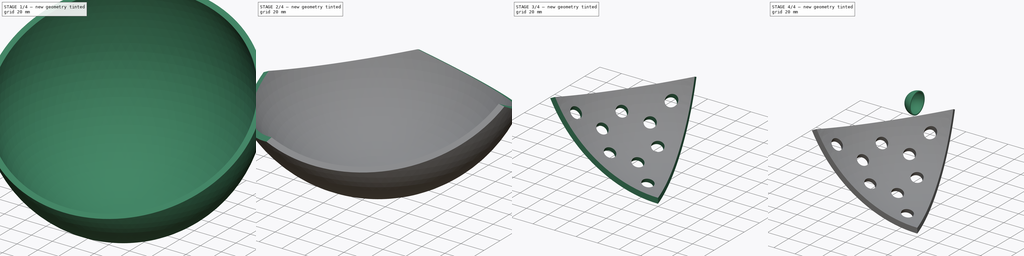
[diagram: build sequence overview — one tinted view per stage of 4, left to right]
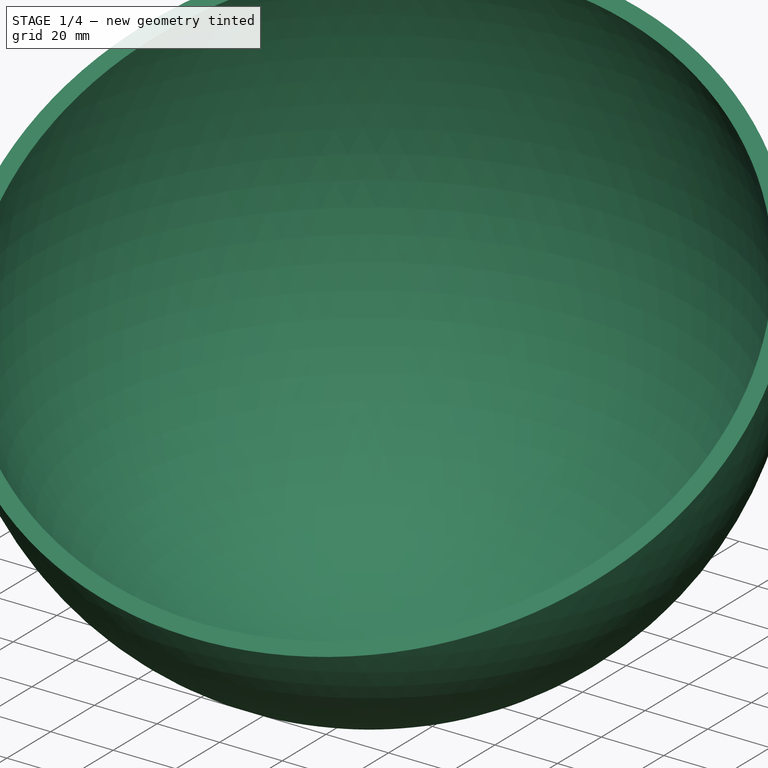
[diagram: stage 1 of 4 — iso view after this stage's code; geometry added in this stage tinted green]
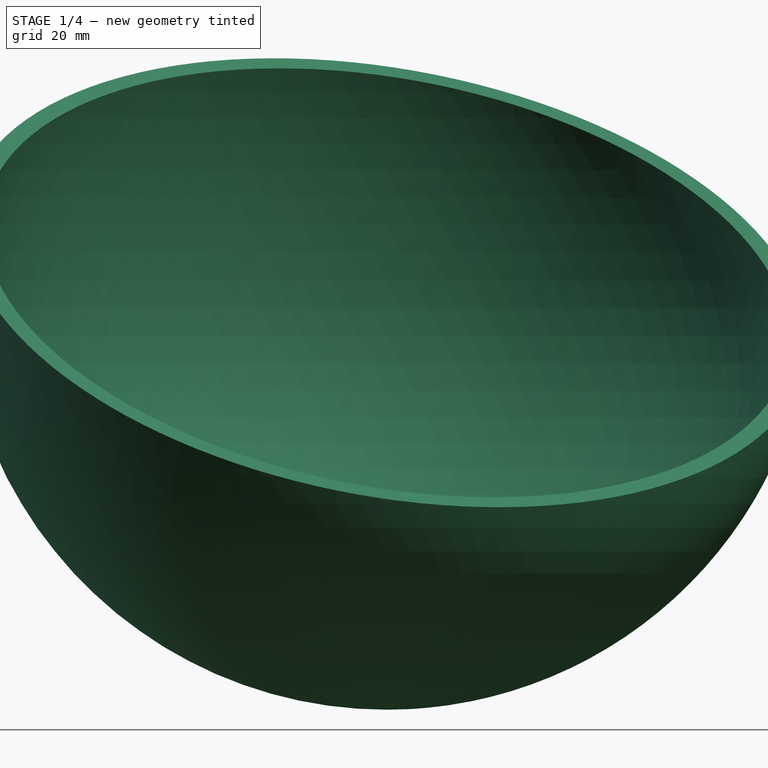
[diagram: stage 1 of 4 — front view after this stage's code; geometry added in this stage tinted green]
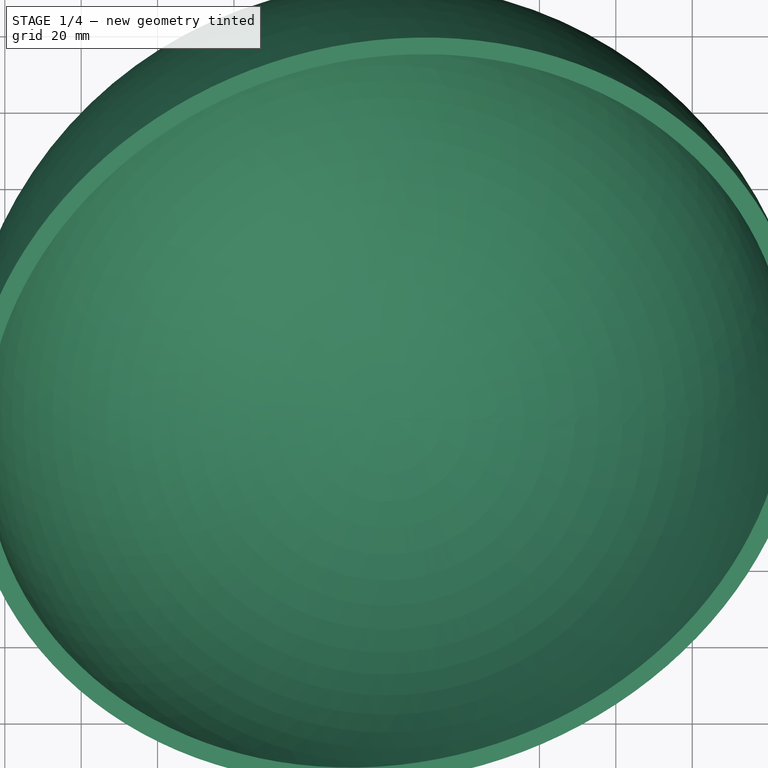
[diagram: stage 1 of 4 — top view after this stage's code; geometry added in this stage tinted green]
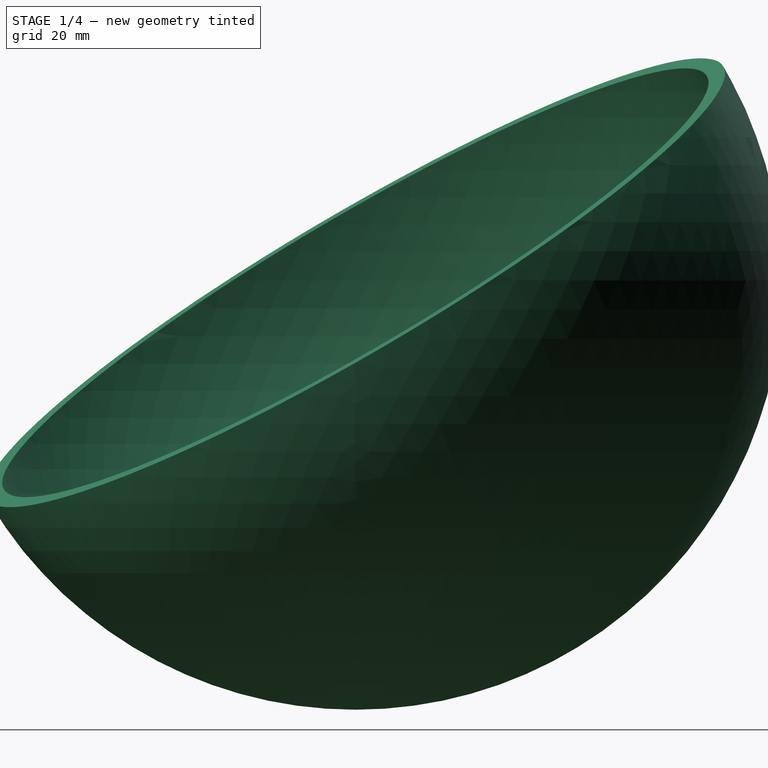
[diagram: stage 1 of 4 — right view after this stage's code; geometry added in this stage tinted green]
FCSTD DOCUMENT  (FreeCAD 0.19R24267 +99 (Git))
Label: test
License: All rights reserved
LicenseURL: http://en.wikipedia.org/wiki/All_rights_reserved
objects: PartDesign::SubtractiveBox×8, PartDesign::Body×3, PartDesign::Plane×3, PartDesign::AdditiveSphere×2, PartDesign::SubtractiveSphere×2, Part::Part2DObjectPython×2, Sketcher::SketchObject×2, Part::Vertex×1, App::Part×1, Spreadsheet::Sheet×1, PartDesign::Pocket×1
note: 37 computed .brp shape members not serialized (recipe doc carries the construction recipe); baked Part::Feature solids carry a one-line shape summary decoded from their .brp

FEATURE [PartDesign::Body] Body
  Group = -> [Sphere,Sphere001,Box]
  Origin = -> Origin
  Tip = -> Box
FEATURE [Part::Part2DObjectPython] Polygon  label="pentagon1"  # Draft 2D object (typed FeaturePython)
  Area = 0
  ChamferSize = 0
  DrawMode = 0
  FacesNumber = 5
  FilletRadius = 0
  MakeFace = false
  Placement = pos=(0,0,50) rot=(0,0,1;0rad)
  Radius = 100
  expr: .Placement.Base.z = <<Spreadsheet>>.hex_radius / 2
  expr: Radius = <<Spreadsheet>>.hex_radius
FEATURE [Part::Part2DObjectPython] Polygon001  label="pentagon0"  # Draft 2D object (typed FeaturePython)
  Area = 0
  ChamferSize = 0
  DrawMode = 0
  FacesNumber = 5
  FilletRadius = 0
  MakeFace = false
  Placement = pos=(0,0,-50) rot=(0,0,1;0.628319rad)
  Radius = 100
  expr: .Placement.Base.z = -<<Spreadsheet>>.hex_radius / 2
  expr: Radius = <<Spreadsheet>>.hex_radius
FEATURE [Part::Vertex] Vertex  label="center"
  AttacherType = Attacher::AttachEngine3D
  X = 0
  Y = 0
  Z = 0
FEATURE [PartDesign::Body] Body001
  Origin = -> Origin002
FEATURE [App::Part] Part
  Group = -> [Polygon001,Polygon,Vertex,Body001]
  Origin = -> Origin001
FEATURE [Spreadsheet::Sheet] Spreadsheet
  cells = A4=hex_radius; C4(hex_radius)==100mm; A5=sphere_radius; C5(sphere_radius)==hex_radius / 2 * sqrt(5)
FEATURE [PartDesign::Plane] DatumPlane
  Length = 169.428
  MapMode = 13
  Placement = pos=(-16.6667,51.2947,33.3333) rot=(0.865183,0.137031,0.482371;0.63451rad)
  ResizeMode = 0
  Support = -> [Vertex,Polygon]
  Width = 211.302
FEATURE [PartDesign::AdditiveSphere] Sphere002
  Angle1 = -90
  Angle2 = 90
  Angle3 = 360
  AttacherType = Attacher::AttachEngine3D
  Radius = 111.803
  expr: Radius = <<Spreadsheet>>.sphere_radius
FEATURE [PartDesign::SubtractiveSphere] Sphere003
  Angle1 = -90
  Angle2 = 90
  Angle3 = 360
  AttacherType = Attacher::AttachEngine3D
  BaseFeature = -> Sphere002
  Radius = 106.803
  expr: Radius = <<Spreadsheet>>.sphere_radius - 5mm
FEATURE [PartDesign::SubtractiveBox] Box001
  AttacherType = Attacher::AttachEngine3D
  AttachmentOffset = pos=(-200,-200,0) rot=(0,0,1;0rad)
  BaseFeature = -> Sphere003
  Height = 400
  Length = 400
  MapMode = 5
  Placement = pos=(-154.305,-172.312,-71.8129) rot=(0.865183,0.137031,0.482371;0.63451rad)
  Support = -> [DatumPlane]
  Width = 400
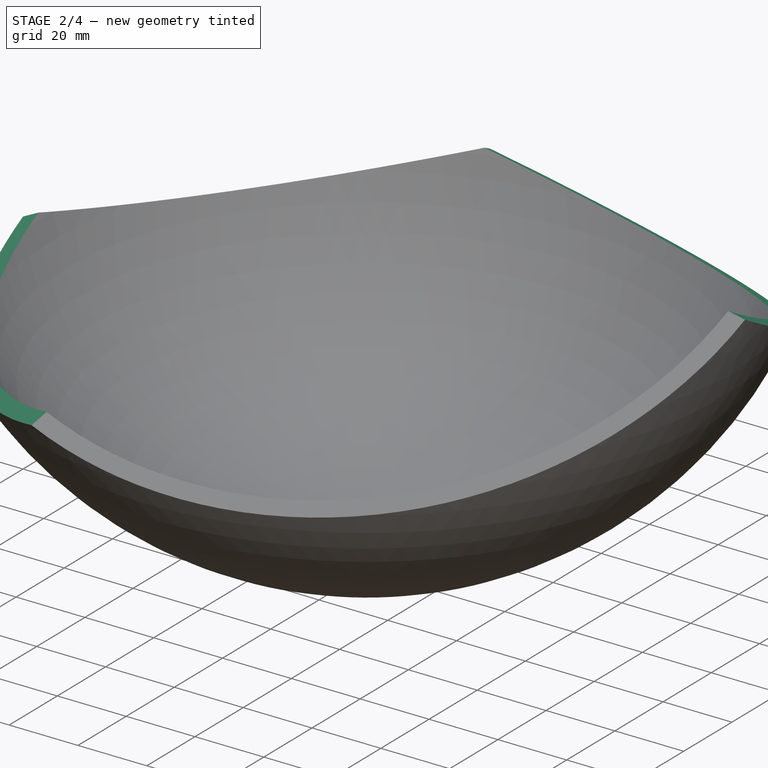
[diagram: stage 2 of 4 — iso view after this stage's code; geometry added in this stage tinted green]
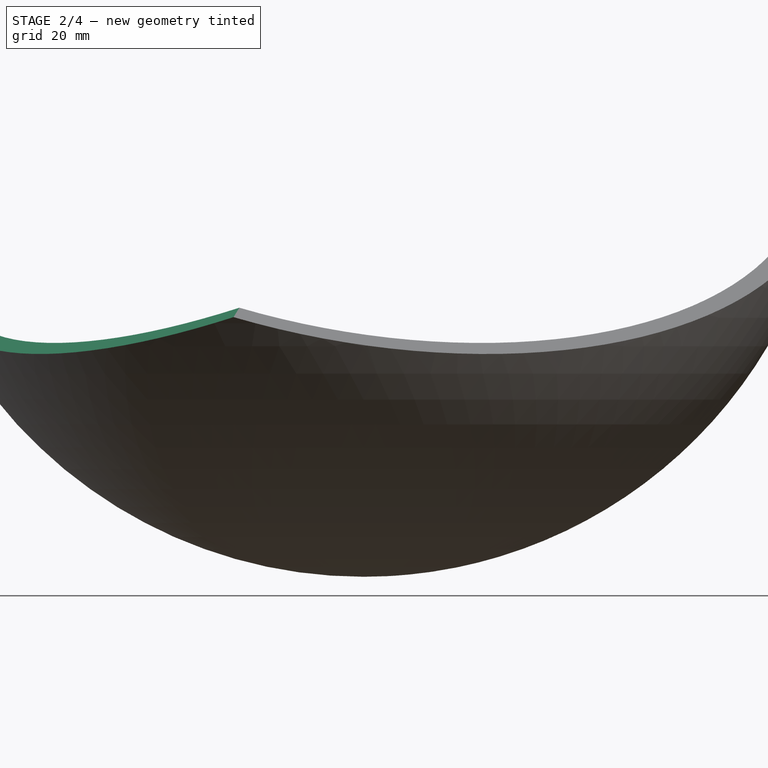
[diagram: stage 2 of 4 — front view after this stage's code; geometry added in this stage tinted green]
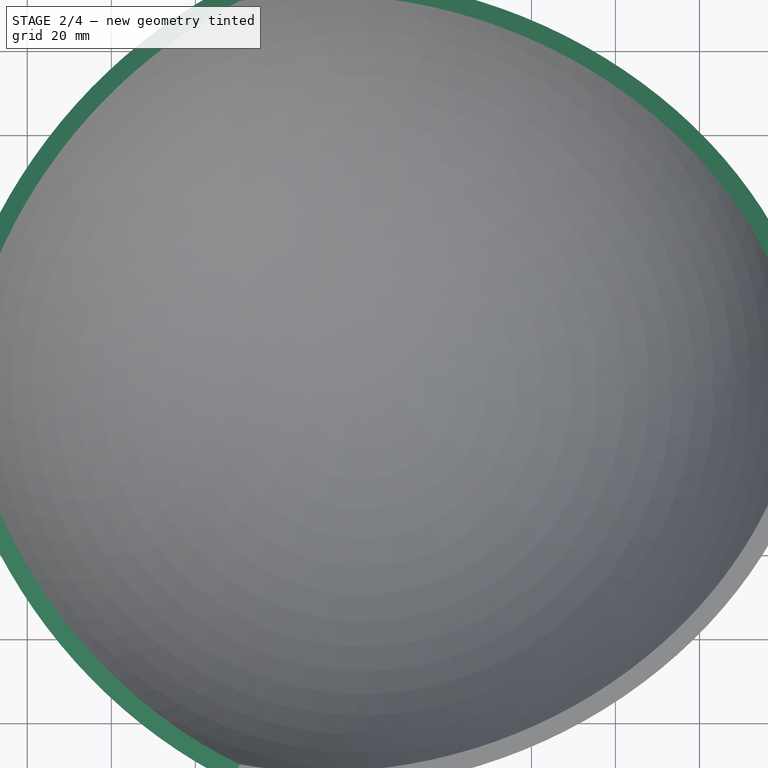
[diagram: stage 2 of 4 — top view after this stage's code; geometry added in this stage tinted green]
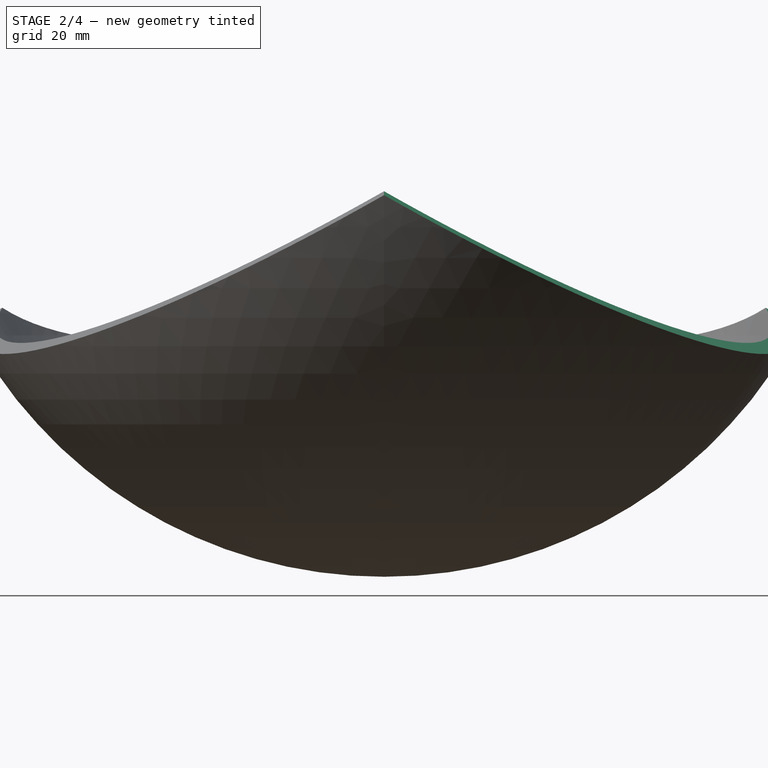
[diagram: stage 2 of 4 — right view after this stage's code; geometry added in this stage tinted green]
FEATURE [PartDesign::SubtractiveBox] Box002
  AttacherType = Attacher::AttachEngine3D
  AttachmentOffset = pos=(-200,-200,0) rot=(0,0,1;0rad)
  BaseFeature = -> Box001
  Height = 400
  Length = 400
  MapMode = 13
  Placement = pos=(-298.829,30.1015,-138.48) rot=(0.472633,-0.240819,-0.847717;1.08239rad)
  Support = -> [Vertex,Polygon001]
  Width = 400
FEATURE [PartDesign::SubtractiveBox] Box003
  AttacherType = Attacher::AttachEngine3D
  AttachmentOffset = pos=(-200,-200,0) rot=(0,0,1;0rad)
  BaseFeature = -> Box002
  Height = 400
  Length = 400
  MapMode = 13
  Placement = pos=(-63.715,293.505,-138.48) rot=(-0.137906,0.270656,0.952747;4.04547rad)
  Support = -> [Vertex,Polygon001]
  Width = 400
FEATURE [PartDesign::SubtractiveBox] Box004
  AttacherType = Attacher::AttachEngine3D
  AttachmentOffset = pos=(-200,-200,0) rot=(0,0,1;0rad)
  BaseFeature = -> Box003
  Height = 400
  Length = 400
  MapMode = 13
  Placement = pos=(259.451,151.295,-138.48) rot=(0.043241,0.273011,0.961039;2.83948rad)
  Support = -> [Vertex,Polygon001]
  Width = 400
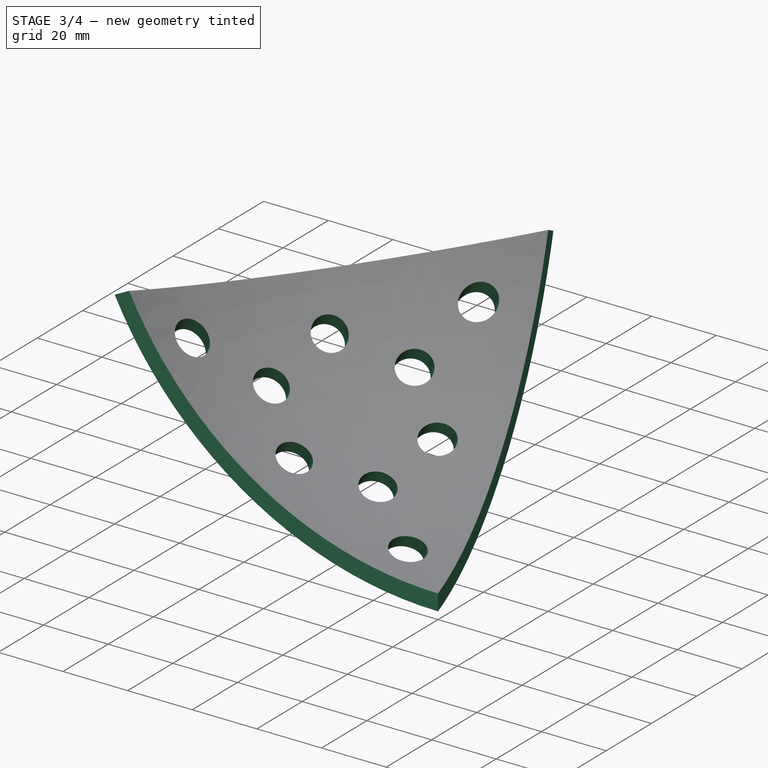
[diagram: stage 3 of 4 — iso view after this stage's code; geometry added in this stage tinted green]
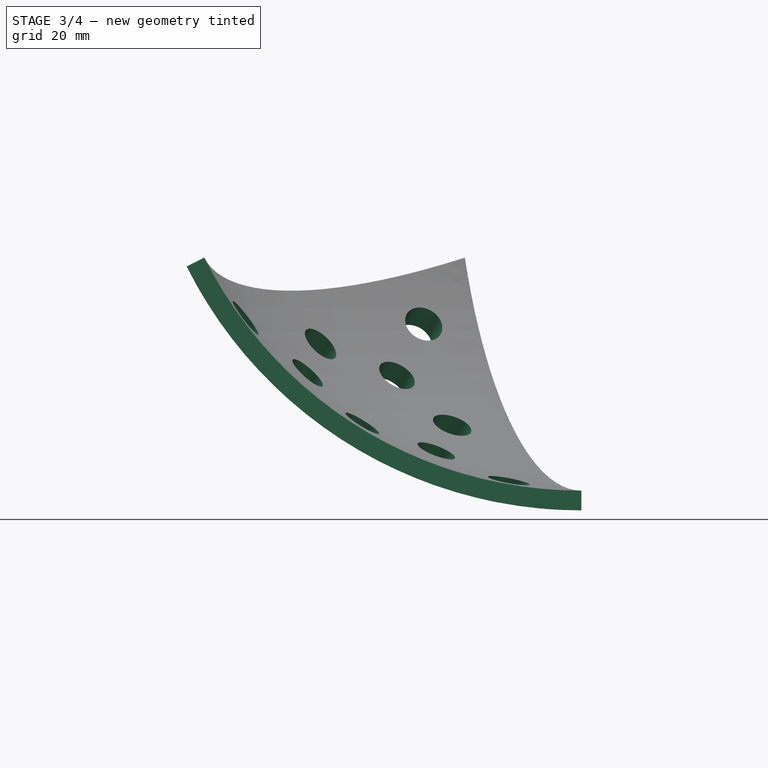
[diagram: stage 3 of 4 — front view after this stage's code; geometry added in this stage tinted green]
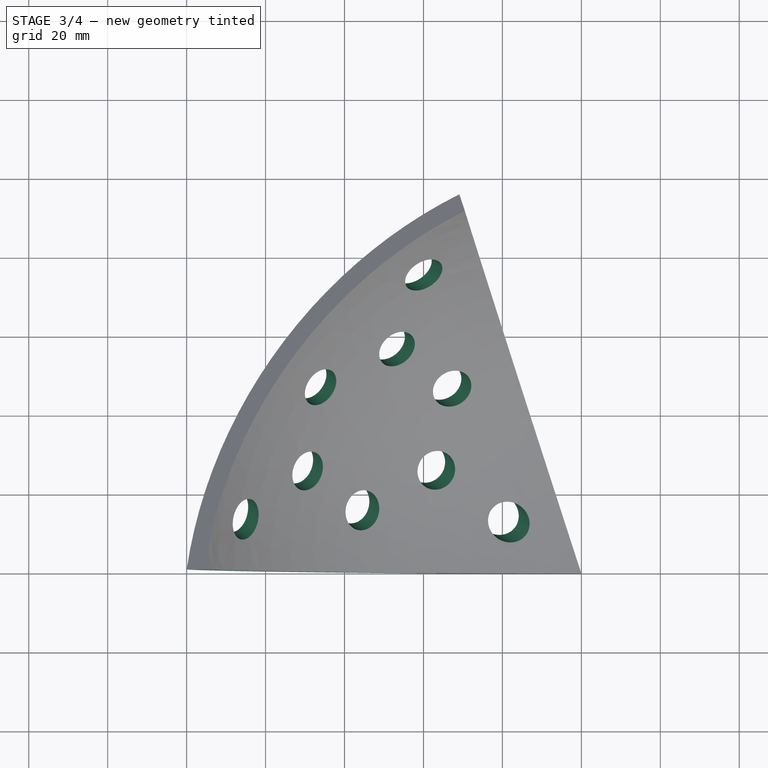
[diagram: stage 3 of 4 — top view after this stage's code; geometry added in this stage tinted green]
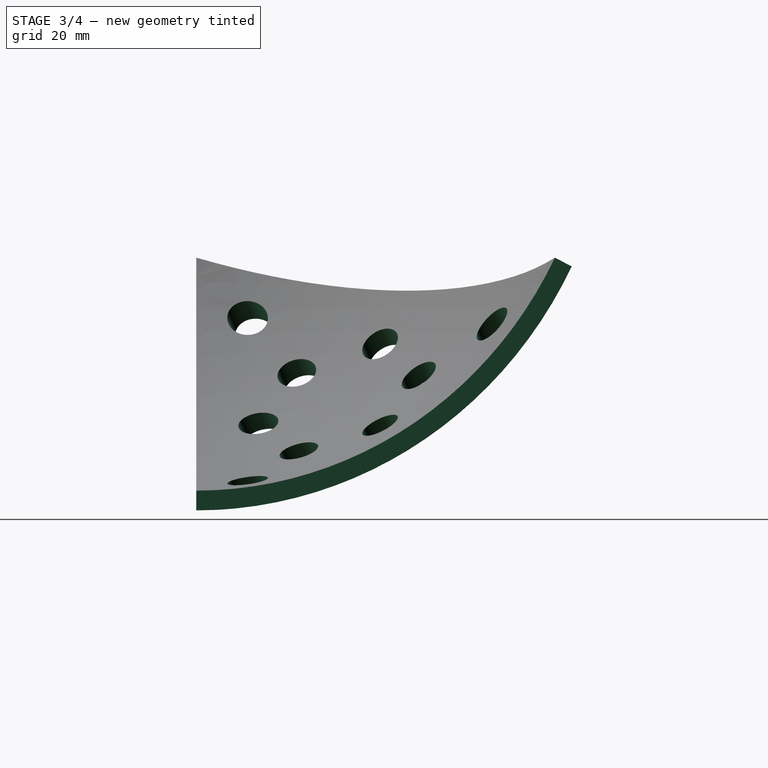
[diagram: stage 3 of 4 — right view after this stage's code; geometry added in this stage tinted green]
FEATURE [PartDesign::SubtractiveBox] Box005
  AttacherType = Attacher::AttachEngine3D
  AttachmentOffset = pos=(-200,-200,0) rot=(0,0,1;0rad)
  BaseFeature = -> Box004
  Height = 400
  Length = 400
  MapMode = 13
  Placement = pos=(224.065,-200,-138.48) rot=(0.263602,0.263602,0.927916;1.64554rad)
  Support = -> [Vertex,Polygon001]
  Width = 400
FEATURE [PartDesign::Plane] DatumPlane001
  Length = 133.767
  MapMode = 13
  Placement = pos=(-33.3333,-1.705e-13,-53.9345) rot=(1,0,0;1.5708rad)
  ResizeMode = 0
  Support = -> [Box005,Vertex]
  Width = 146.342
FEATURE [PartDesign::SubtractiveBox] Box006
  AttacherType = Attacher::AttachEngine3D
  AttachmentOffset = pos=(-200,-200,0) rot=(0,0,1;0rad)
  BaseFeature = -> Box005
  Height = 400
  Length = 400
  MapMode = 5
  Placement = pos=(-233.333,-1.0554e-12,-253.934) rot=(1,0,0;1.5708rad)
  Support = -> [DatumPlane001]
  Width = 400
FEATURE [PartDesign::SubtractiveBox] Box007
  AttacherType = Attacher::AttachEngine3D
  AttachmentOffset = pos=(-200,-200,0) rot=(0,0,1;0rad)
  BaseFeature = -> Box006
  Height = 400
  Length = 400
  MapMode = 13
  Placement = pos=(51.5028,-158.509,-253.934) rot=(0.456966,0.62896,0.62896;2.28433rad)
  Support = -> [Vertex,Box006,Polygon001]
  Width = 400
FEATURE [PartDesign::Plane] DatumPlane002
  Length = 185.37
  MapMode = 13
  Placement = pos=(-41.6825,30.2841,-67.4438) rot=(-0.434677,0.853102,0.288571;3.43357rad)
  ResizeMode = 0
  Support = -> [Box007]
  Width = 229.755
FEATURE [Sketcher::SketchObject] Sketch
  ExternalGeometry = -> [Box007]
  FullyConstrained = true
  MapMode = 5
  Placement = pos=(-41.6825,30.2841,-67.4438) rot=(-0.434677,0.853102,0.288571;3.43357rad)
  Support = -> [DatumPlane002]
  sketch-geometry (37):
    g0: Circle CenterX=-37.1412 CenterY=21.4435 CenterZ=0 NormalX=0 NormalY=0 NormalZ=1 AngleXU=0 Radius=5
    g1: Circle CenterX=-18.1484 CenterY=9.24376 CenterZ=0 NormalX=0 NormalY=0 NormalZ=1 AngleXU=0 Radius=5
    g2: Circle CenterX=1.16829 CenterY=21.9494 CenterZ=0 NormalX=0 NormalY=0 NormalZ=1 AngleXU=0 Radius=5
    g3: Circle CenterX=-18.4246 CenterY=-11.9864 CenterZ=0 NormalX=0 NormalY=0 NormalZ=1 AngleXU=0 Radius=5
    g4: LineSegment StartX=58.7785 StartY=33.9358 StartZ=0 EndX=-2.061e-13 EndY=-67.8716 EndZ=0
    g5: LineSegment StartX=-2.061e-13 StartY=-67.8716 StartZ=0 EndX=-56.1499 EndY=32.4181 EndZ=0
    g6: LineSegment StartX=-17.8404 StartY=32.924 StartZ=0 EndX=-37.4332 EndY=-1.01177 EndZ=0
    g7: LineSegment StartX=-17.8404 StartY=32.924 StartZ=0 EndX=19.5928 EndY=-33.9358 EndZ=0
    g8: LineSegment StartX=-37.4332 StartY=-1.01177 StartZ=0 EndX=39.1857 EndY=-7.82e-14 EndZ=0
    g9: LineSegment StartX=20.4691 StartY=33.4299 StartZ=0 EndX=-18.7166 EndY=-34.4417 EndZ=0
    g10: LineSegment StartX=20.4691 StartY=33.4299 StartZ=0 EndX=39.1857 EndY=-7.82e-14 EndZ=0
    g11: LineSegment StartX=-18.7166 StartY=-34.4417 StartZ=0 EndX=19.5928 EndY=-33.9358 EndZ=0
    g12: LineSegment StartX=-56.1499 StartY=32.4181 StartZ=0 EndX=-36.9951 EndY=32.6711 EndZ=0
    g13: LineSegment StartX=-36.9951 StartY=32.6711 StartZ=0 EndX=-17.8404 EndY=32.924 EndZ=0
    g14: LineSegment StartX=-17.8404 StartY=32.924 StartZ=0 EndX=1.31433 EndY=33.177 EndZ=0
    g15: LineSegment StartX=1.31433 StartY=33.177 StartZ=0 EndX=20.4691 EndY=33.4299 EndZ=0
    g16: LineSegment StartX=20.4691 StartY=33.4299 StartZ=0 EndX=39.6238 EndY=33.6829 EndZ=0
    g17: LineSegment StartX=39.6238 StartY=33.6829 StartZ=0 EndX=58.7785 EndY=33.9358 EndZ=0
    g18: GeomPoint X=39.1857 Y=-7.82e-14 Z=0
    g19: LineSegment StartX=-17.8404 StartY=32.924 StartZ=0 EndX=-18.7166 EndY=-34.4417 EndZ=0
    g20: LineSegment StartX=-37.1412 StartY=21.4435 StartZ=0 EndX=52.2476 EndY=22.6239 EndZ=0
    g21: LineSegment StartX=1.31433 StartY=33.177 StartZ=0 EndX=-2.061e-13 EndY=-67.8716 EndZ=0
    g22: LineSegment StartX=-36.9951 StartY=32.6711 StartZ=0 EndX=-46.7916 EndY=15.7032 EndZ=0
    g23: LineSegment StartX=-46.7916 StartY=15.7032 StartZ=0 EndX=-27.6368 EndY=15.9561 EndZ=0
    g24: LineSegment StartX=-56.1499 StartY=32.4181 StartZ=0 EndX=29.3893 EndY=-16.9679 EndZ=0
    g25: LineSegment StartX=-46.7916 StartY=15.7032 StartZ=0 EndX=-17.8404 EndY=32.924 EndZ=0
    g26: LineSegment StartX=-43.38 StartY=32.5868 StartZ=0 EndX=6.53095 EndY=-56.5597 EndZ=0
    g27: Circle CenterX=0.292073 CenterY=-45.4164 CenterZ=0 NormalX=0 NormalY=0 NormalZ=1 AngleXU=0 Radius=5
    g28: Circle CenterX=19.8849 CenterY=-11.4806 CenterZ=0 NormalX=0 NormalY=0 NormalZ=1 AngleXU=0 Radius=5
    g29: LineSegment StartX=-36.9951 StartY=32.6711 StartZ=0 EndX=9.79642 EndY=-50.9037 EndZ=0
    g30: LineSegment StartX=39.6238 StartY=33.6829 StartZ=0 EndX=39.1857 EndY=-7.82e-14 EndZ=0
    g31: LineSegment StartX=19.5928 StartY=-33.9358 StartZ=0 EndX=20.4691 EndY=33.4299 EndZ=0
    g32: Circle CenterX=39.4778 CenterY=22.4552 CenterZ=0 NormalX=0 NormalY=0 NormalZ=1 AngleXU=0 Radius=5
    g33: LineSegment StartX=-18.1484 StartY=9.24376 StartZ=0 EndX=20.1611 EndY=9.74965 EndZ=0
    g34: Circle CenterX=20.1611 CenterY=9.74965 CenterZ=0 NormalX=0 NormalY=0 NormalZ=1 AngleXU=0 Radius=5
    g35: LineSegment StartX=-18.7166 StartY=-34.4417 StartZ=0 EndX=39.1857 EndY=-7.82e-14 EndZ=0
    g36: Circle CenterX=0.584146 CenterY=-22.9611 CenterZ=0 NormalX=0 NormalY=0 NormalZ=1 AngleXU=0 Radius=5
  constraints (98):
    c: Radius(g0) = 5
    c: Equal(g12,g13)
    c: Equal(g13,g14)
    c: Equal(g14,g15)
    c: Equal(g15,g16)
    c: Equal(g16,g17)
    c: Parallel(g12,g13)
    c: Parallel(g13,g14)
    c: Parallel(g14,g15)
    c: Parallel(g15,g16)
    c: Parallel(g16,g17)
    c: Coincident(g12,g13)
    c: Coincident(g14,g13)
    c: Coincident(g15,g14)
    c: Coincident(g16,g15)
    c: Coincident(g16,g17)
    c: Coincident(g12,g-4)
    c: Coincident(g-5,g17)
    c: Coincident(g4,g17)
    c: Coincident(g4,g-3)
    c: Coincident(g5,g4)
    c: Coincident(g5,g12)
    c: Coincident(g6,g7)
    c: Coincident(g6,g13)
    c: Coincident(g10,g15)
    c: Coincident(g10,g9)
    c: Parallel(g6,g9)
    c: Parallel(g9,g4)
    c: PointOnObject(g18,g4)
    c: Coincident(g10,g18)
    c: Parallel(g10,g5)
    c: Parallel(g7,g5)
    c: PointOnObject(g7,g4)
    c: PointOnObject(g6,g5)
    c: PointOnObject(g9,g5)
    c: Coincident(g8,g6)
    c: Coincident(g11,g9)
    c: Coincident(g8,g10)
    c: Coincident(g11,g7)
    c: Coincident(g19,g6)
    c: Coincident(g19,g9)
    c: PointOnObject(g1,g19)
    c: Coincident(g20,g0)
    c: PointOnObject(g20,g4)
    c: Parallel(g20,g17)
    c: Coincident(g21,g14)
    c: Coincident(g21,g4)
    c: PointOnObject(g2,g20)
    c: PointOnObject(g2,g21)
    c: Coincident(g22,g12)
    c: PointOnObject(g22,g5)
    c: Parallel(g22,g6)
    c: Coincident(g23,g22)
    c: PointOnObject(g23,g6)
    c: Parallel(g23,g13)
    c: Coincident(g24,g5)
    c: PointOnObject(g24,g4)
    c: PointOnObject(g23,g24)
    c: Coincident(g25,g22)
    c: Coincident(g25,g6)
    c: PointOnObject(g0,g25)
    c: PointOnObject(g0,g24)
    c: PointOnObject(g0,g26)
    c: Parallel(g26,g5)
    c: PointOnObject(g3,g26)
    c: PointOnObject(g3,g19)
    c: PointOnObject(g27,g26)
    c: PointOnObject(g27,g21)
    c: PointOnObject(g28,g24)
    c: Coincident(g29,g12)
    c: Tangent(g29,g1)
    c: PointOnObject(g23,g29)
    c: Coincident(g30,g16)
    c: Coincident(g30,g8)
    c: Coincident(g31,g7)
    c: Coincident(g31,g9)
    c: PointOnObject(g32,g20)
    c: PointOnObject(g32,g30)
    c: Coincident(g33,g1)
    c: PointOnObject(g33,g31)
    c: Parallel(g33,g15)
    c: Coincident(g34,g33)
    c: PointOnObject(g28,g31)
    c: Coincident(g35,g9)
    c: Coincident(g35,g8)
    c: PointOnObject(g36,g35)
    c: PointOnObject(g36,g21)
    c: Equal(g0,g2)
    c: Equal(g2,g32)
    c: Equal(g32,g34)
    c: Equal(g34,g1)
    c: Equal(g1,g3)
    c: Equal(g3,g36)
    c: Equal(g36,g28)
    c: Equal(g28,g27)
    c: PointOnObject(g26,g4)
    c: PointOnObject(g29,g4)
    c: PointOnObject(g26,g12)
FEATURE [PartDesign::Pocket] Pocket
  BaseFeature = -> Box007
  Length = 5
  Length2 = 100
  Midplane = true
  Placement = pos=(51.5028,-158.509,-253.934) rot=(0.456966,0.62896,0.62896;2.28433rad)
  Profile = -> Sketch
  Type = 1
FEATURE [Sketcher::SketchObject] Sketch001
  ExternalGeometry = -> [Pocket]
  FullyConstrained = true
  MapMode = 5
  Placement = pos=(-41.6825,30.2841,-67.4438) rot=(-0.434677,0.853102,0.288571;3.43357rad)
  Support = -> [DatumPlane002]
  sketch-geometry (6):
    g0: LineSegment StartX=-56.1499 StartY=32.4181 StartZ=0 EndX=56.1499 EndY=32.4181 EndZ=0
    g1: LineSegment StartX=-56.1499 StartY=32.4181 StartZ=0 EndX=-2.84e-14 EndY=-64.8363 EndZ=0
    g2: LineSegment StartX=56.1499 StartY=32.4181 StartZ=0 EndX=-2.84e-14 EndY=-64.8363 EndZ=0
    g3: Circle CenterX=-48.3556 CenterY=27.9181 CenterZ=0 NormalX=0 NormalY=0 NormalZ=1 AngleXU=0 Radius=4.5
    g4: Circle CenterX=48.3556 CenterY=27.9181 CenterZ=0 NormalX=0 NormalY=0 NormalZ=1 AngleXU=0 Radius=4.5
    g5: Circle CenterX=-1.76e-14 CenterY=-55.8363 CenterZ=0 NormalX=0 NormalY=0 NormalZ=1 AngleXU=0 Radius=4.5
  constraints (15):
    c: Coincident(g0,g1)
    c: Coincident(g2,g0)
    c: Coincident(g2,g1)
    c: Tangent(g3,g0)
    c: Tangent(g3,g1)
    c: Radius(g3) = 4.5
    c: Tangent(g4,g2)
    c: Tangent(g4,g0)
    c: Equal(g4,g3)
    c: Tangent(g5,g2)
    c: Tangent(g5,g1)
    c: Equal(g5,g3)
    c: Coincident(g0,g-3)
    c: Coincident(g0,g-4)
    c: Coincident(g1,g-5)
FEATURE [PartDesign::Body] Body002
  Group = -> [DatumPlane,Sphere002,Sphere003,Box001,Box002,Box003,Box004,Box005,DatumPlane001,Box006,Box007,DatumPlane002,Sketch,Pocket,Sketch001]
  Origin = -> Origin003
  Tip = -> Pocket
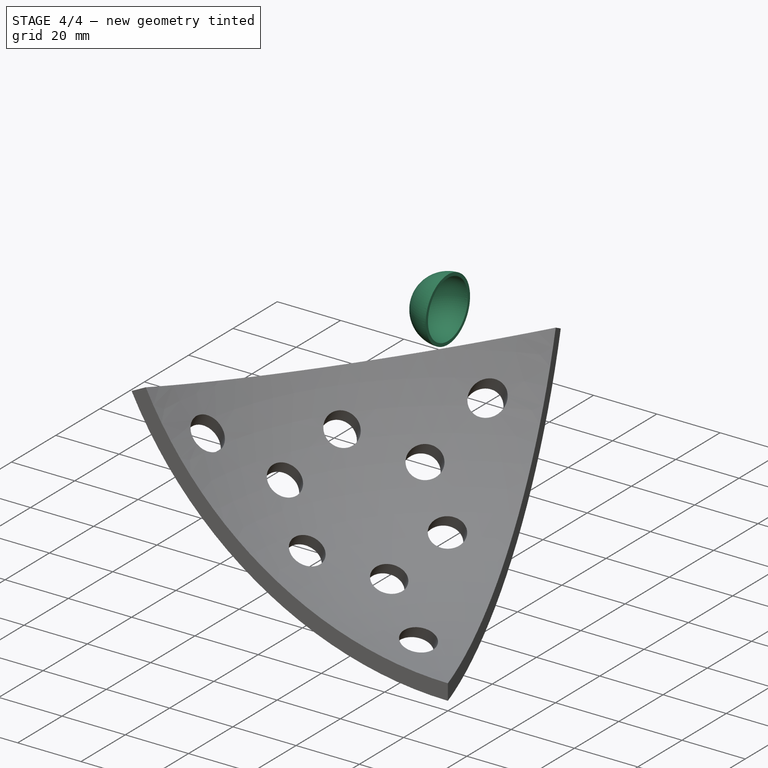
[diagram: stage 4 of 4 — iso view after this stage's code; geometry added in this stage tinted green]
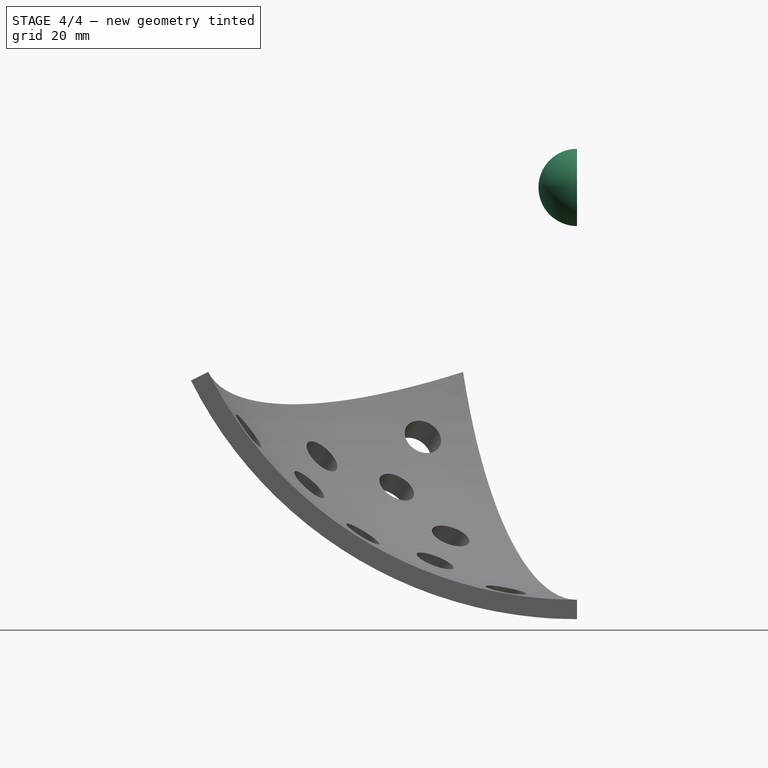
[diagram: stage 4 of 4 — front view after this stage's code; geometry added in this stage tinted green]
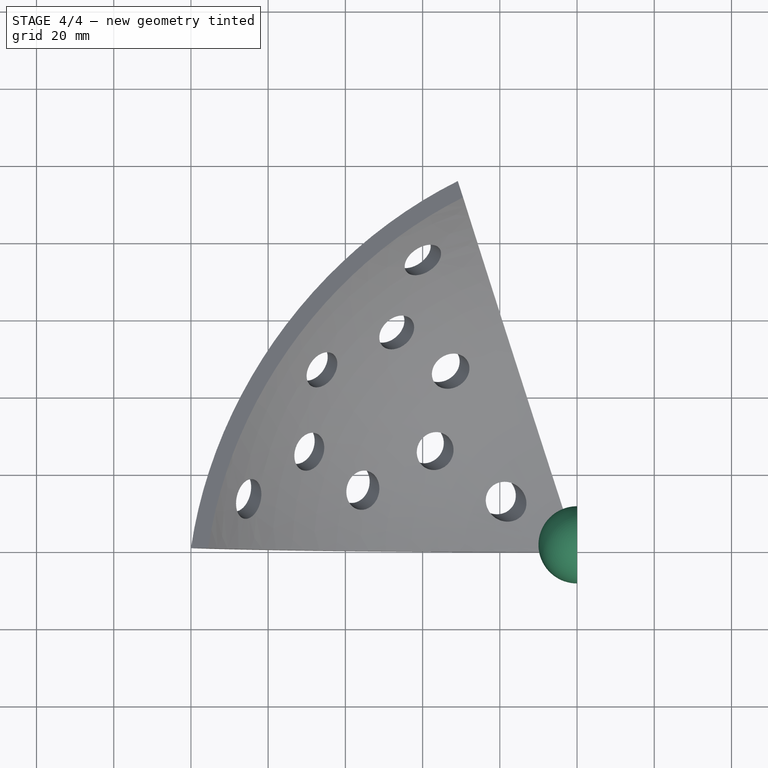
[diagram: stage 4 of 4 — top view after this stage's code; geometry added in this stage tinted green]
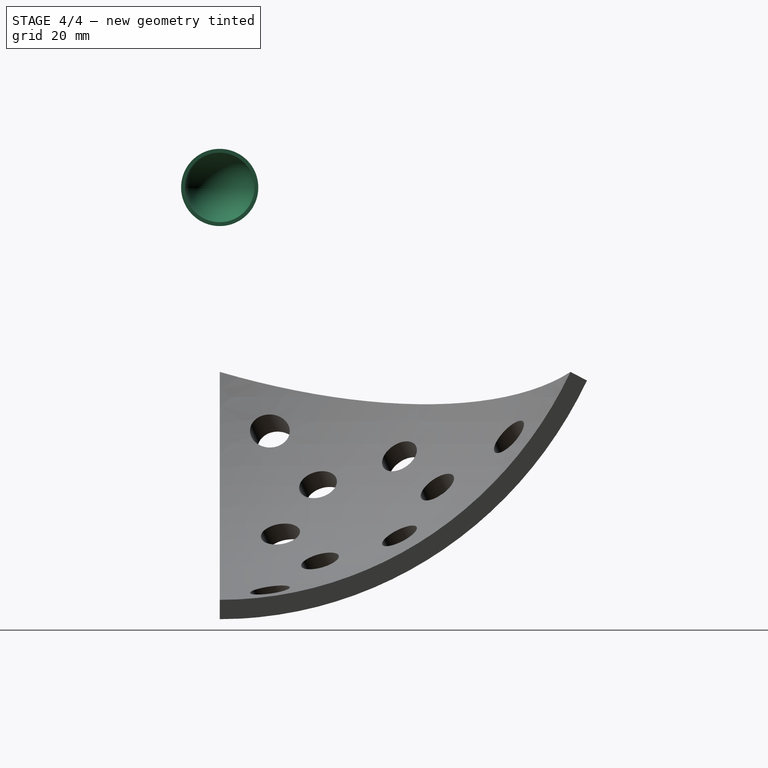
[diagram: stage 4 of 4 — right view after this stage's code; geometry added in this stage tinted green]
FEATURE [PartDesign::AdditiveSphere] Sphere
  Angle1 = -90
  Angle2 = 90
  Angle3 = 360
  AttacherType = Attacher::AttachEngine3D
  Radius = 10
FEATURE [PartDesign::SubtractiveSphere] Sphere001
  Angle1 = -90
  Angle2 = 90
  Angle3 = 360
  AttacherType = Attacher::AttachEngine3D
  BaseFeature = -> Sphere
  Radius = 9
FEATURE [PartDesign::SubtractiveBox] Box
  AttacherType = Attacher::AttachEngine3D
  AttachmentOffset = pos=(-10,0,-10) rot=(0,0,1;0rad)
  BaseFeature = -> Sphere001
  Height = 20
  Length = 20
  MapMode = 4
  Placement = pos=(0,-10,-10) rot=(0.57735,0.57735,0.57735;4.18879rad)
  Support = -> [YZ_Plane]
  Width = 20
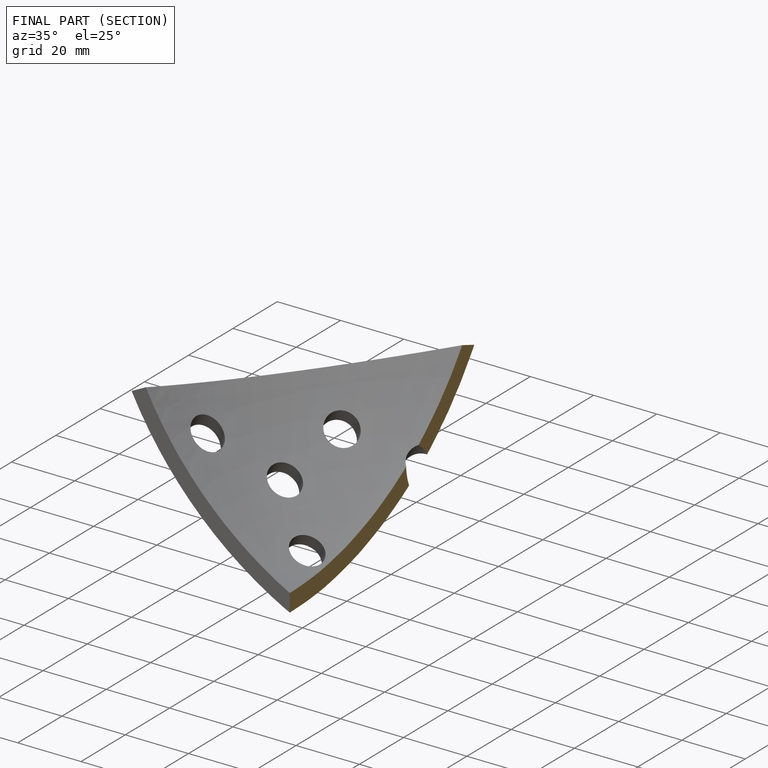
[diagram: finished part — half-section view (interior)]
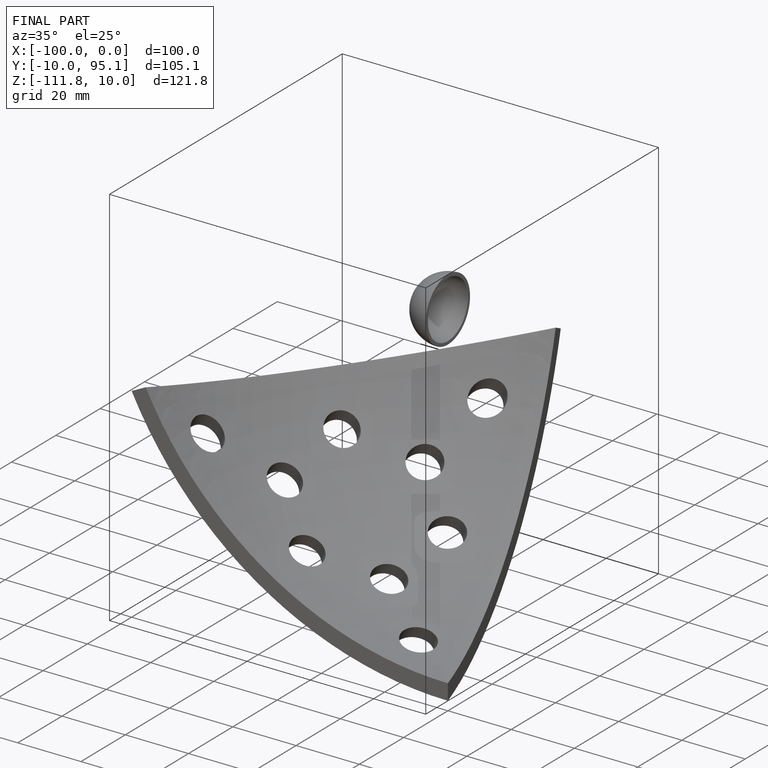
[diagram: finished part — iso view with bounding-box wireframe]
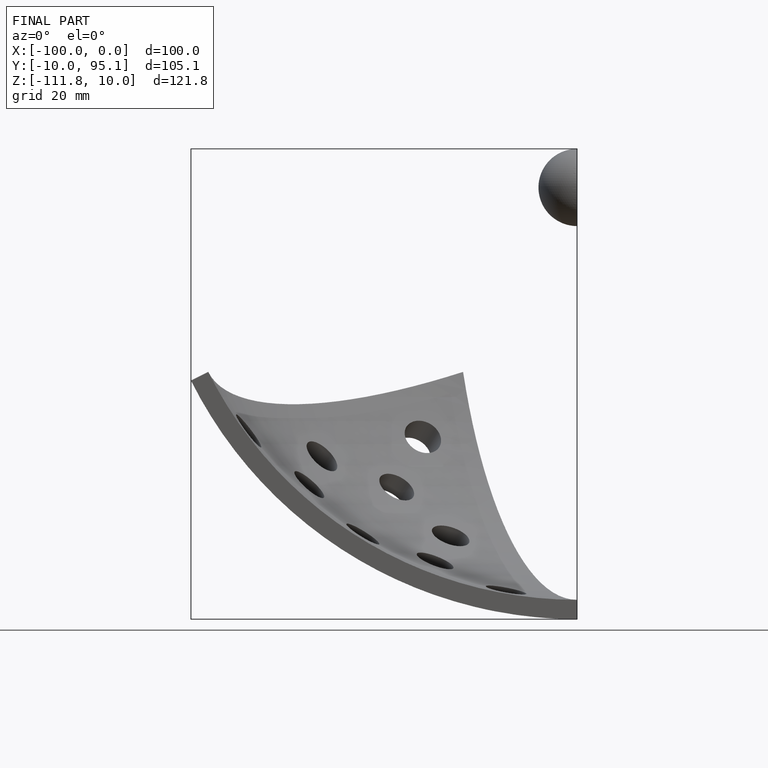
[diagram: finished part — front view with bounding-box wireframe]
